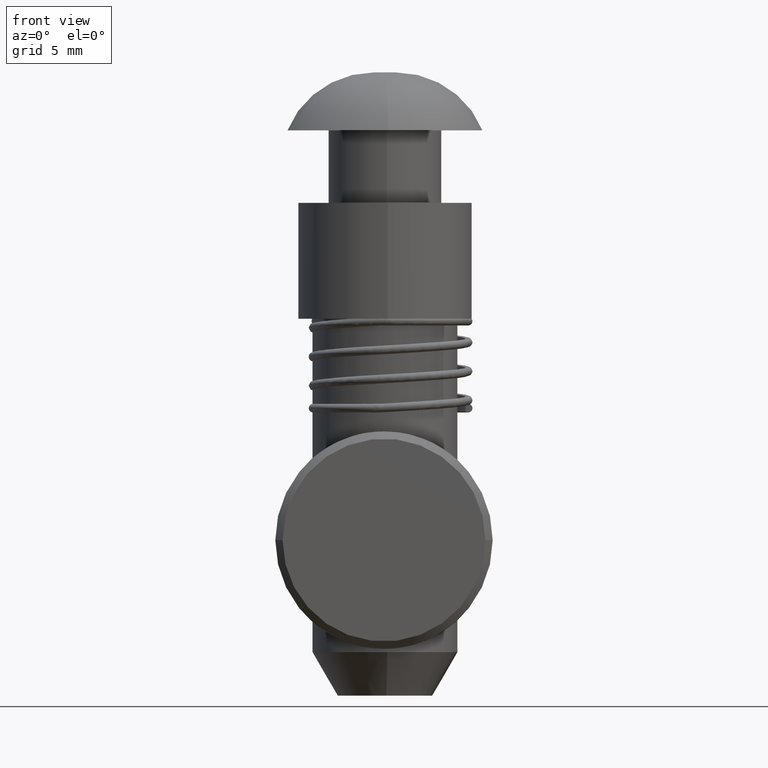
[diagram: clean part render]
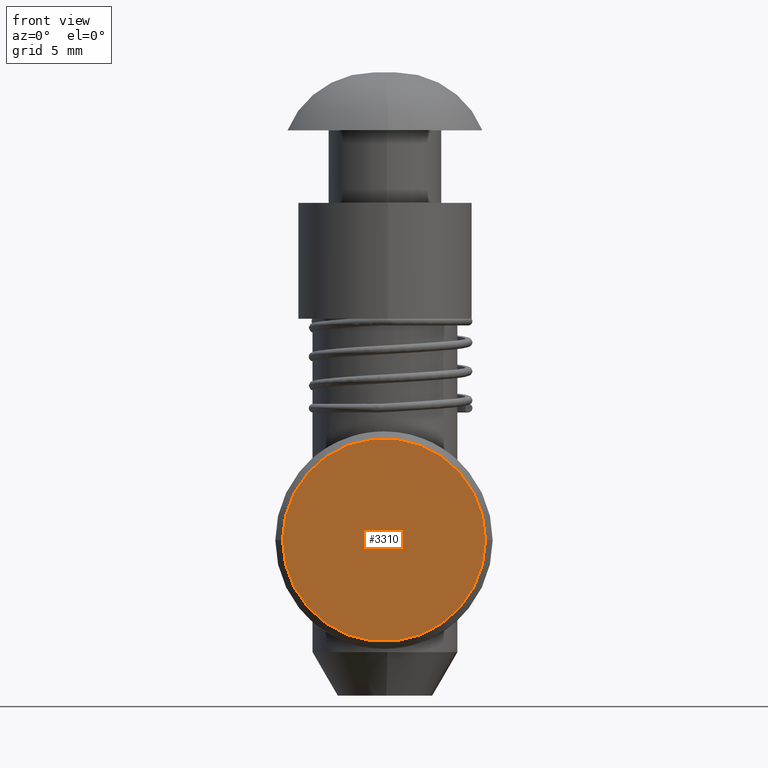
[diagram: same view with one face highlighted and labeled with its STEP entity id]
A machine part, front view. The second image highlights one B-rep face of the part: STEP entity #3310.
In plain terms, the highlighted planar face has unit normal (0, -1, 0).
Its self-contained STEP definition (entity closure, byte-faithful):
#399 = AXIS2_PLACEMENT_3D ( 'NONE', #1263, #1264, #1265 ) ;
#400 = AXIS2_PLACEMENT_3D ( 'NONE', #1316, #1317, #1318 ) ;
#1263 = CARTESIAN_POINT ( 'NONE',  ( 0.0000000000000000000, 0.0000000000000000000, 0.0000000000000000000 ) ) ;
#1264 = DIRECTION ( 'NONE',  ( -0.0000000000000000000, -0.0000000000000000000, 1.000000000000000000 ) ) ;
#1265 = DIRECTION ( 'NONE',  ( -1.000000000000000000, 0.0000000000000000000, 0.0000000000000000000 ) ) ;
#1316 = CARTESIAN_POINT ( 'NONE',  ( 0.0000000000000000000, 0.0000000000000000000, 0.0000000000000000000 ) ) ;
#1317 = DIRECTION ( 'NONE',  ( -0.0000000000000000000, -0.0000000000000000000, 1.000000000000000000 ) ) ;
#1318 = DIRECTION ( 'NONE',  ( -1.000000000000000000, 0.0000000000000000000, 0.0000000000000000000 ) ) ;
#1833 = AXIS2_PLACEMENT_3D ( 'NONE', #1963, #1964, #1965 ) ;
#1962 = PLANE ( 'NONE',  #1833 ) ;
#1963 = CARTESIAN_POINT ( 'NONE',  ( -7.083999999999999600, -7.083999999999999600, 0.0000000000000000000 ) ) ;
#1964 = DIRECTION ( 'NONE',  ( 0.0000000000000000000, 0.0000000000000000000, 1.000000000000000000 ) ) ;
#1965 = DIRECTION ( 'NONE',  ( 1.000000000000000000, 0.0000000000000000000, 0.0000000000000000000 ) ) ;
#2038 = CARTESIAN_POINT ( 'NONE',  ( -7.000000000000000000, 0.0000000000000000000, 0.0000000000000000000 ) ) ;
#2043 = CARTESIAN_POINT ( 'NONE',  ( 7.000000000000000000, 8.878689293818310100E-016, 0.0000000000000000000 ) ) ;
#2763 = FACE_OUTER_BOUND ( 'NONE', #3169, .T. ) ;
#2870 = EDGE_CURVE ( 'NONE', #3508, #3503, #3368, .T. ) ;
#2877 = EDGE_CURVE ( 'NONE', #3503, #3508, #3377, .T. ) ;
#3114 = ORIENTED_EDGE ( 'NONE', *, *, #2870, .T. ) ;
#3115 = ORIENTED_EDGE ( 'NONE', *, *, #2877, .T. ) ;
#3169 = EDGE_LOOP ( 'NONE', ( #3115, #3114 ) ) ;
#3310 = ADVANCED_FACE ( 'NONE', ( #2763 ), #1962, .T. ) ;
#3368 = CIRCLE ( 'NONE', #399, 7.000000000000000000 ) ;
#3377 = CIRCLE ( 'NONE', #400, 7.000000000000000000 ) ;
#3503 = VERTEX_POINT ( 'NONE', #2038 ) ;
#3508 = VERTEX_POINT ( 'NONE', #2043 ) ;